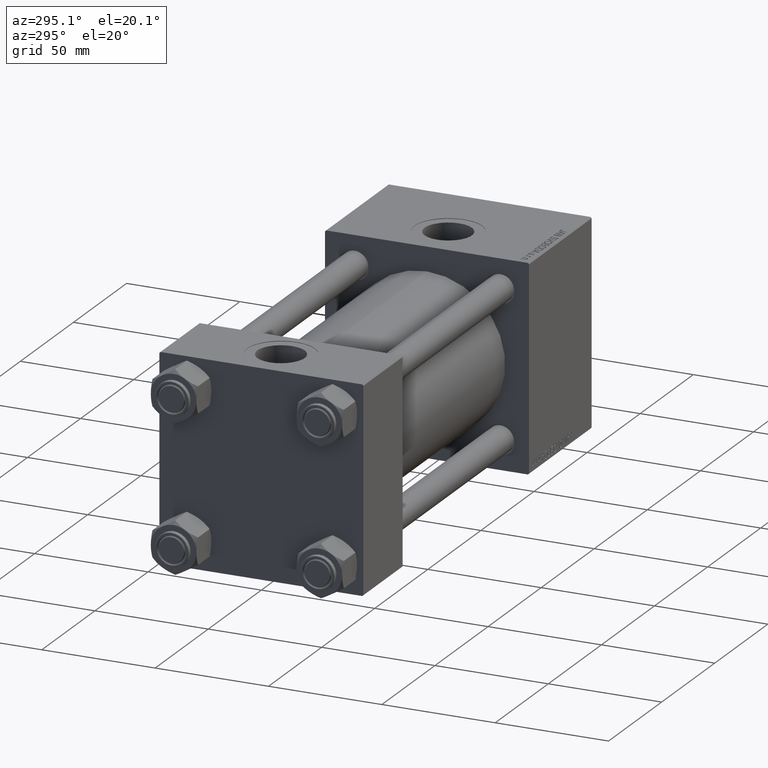
[diagram: clean part render]
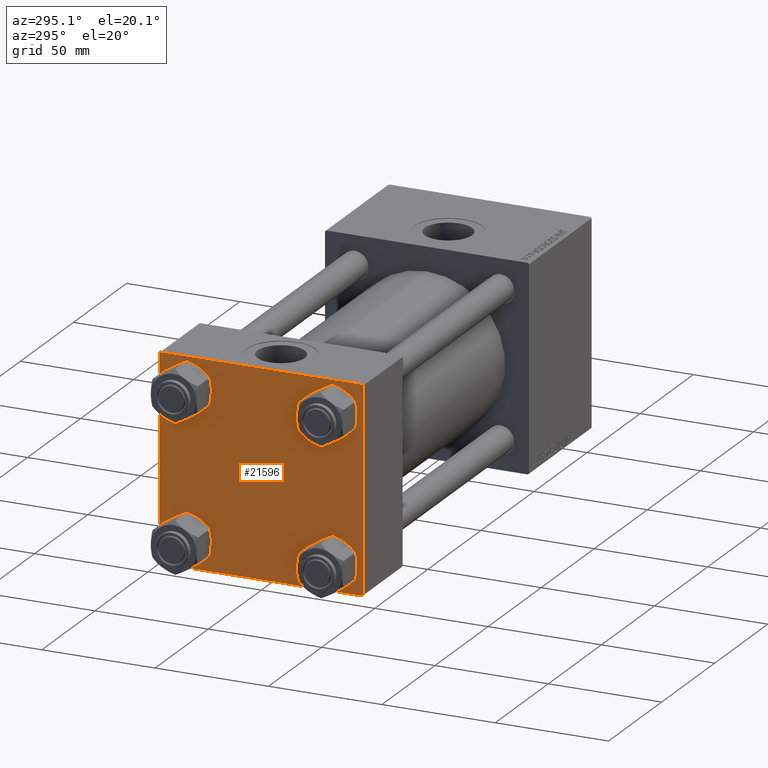
[diagram: same view with one face highlighted and labeled with its STEP entity id]
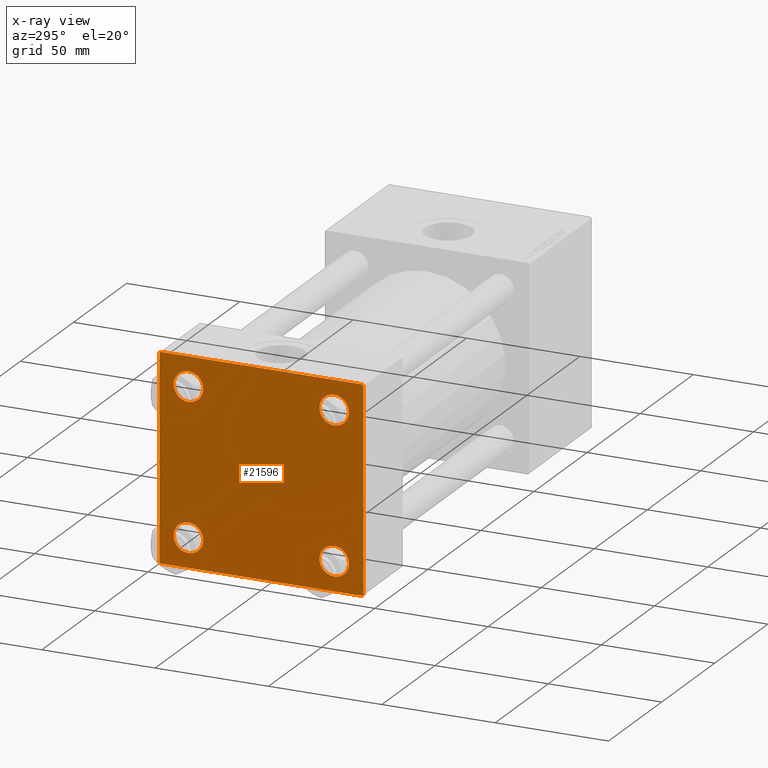
[diagram: x-ray of the same camera — body ghosted, the highlighted face saturated]
A machine part, auxiliary view. The second image highlights one B-rep face of the part: STEP entity #21596.
The next image is the same camera in x-ray: the body ghosted, the highlighted face saturated — about 0% of this face is hidden behind the body in this view.
In plain terms, the highlighted planar face has unit normal (-1, 0, 0).
Its self-contained STEP definition (entity closure, byte-faithful):
#1810 = VERTEX_POINT ( 'NONE', #11045 ) ;
#2087 = DIRECTION ( 'NONE',  ( 1.000000000000000000, -0.000000000000000000, 0.000000000000000000 ) ) ;
#2313 = EDGE_CURVE ( 'NONE', #42416, #33259, #43285, .T. ) ;
#2339 = DIRECTION ( 'NONE',  ( 0.000000000000000000, 0.000000000000000000, 1.000000000000000000 ) ) ;
#2848 = CARTESIAN_POINT ( 'NONE',  ( 0.000000000000000000, 44.99999999999998579, -44.49999999999995737 ) ) ;
#3669 = DIRECTION ( 'NONE',  ( 1.000000000000000000, -0.000000000000000000, 0.000000000000000000 ) ) ;
#3994 = FACE_BOUND ( 'NONE', #44770, .T. ) ;
#4789 = CARTESIAN_POINT ( 'NONE',  ( 0.000000000000000000, 44.49999999999998579, 45.00000000000001421 ) ) ;
#4838 = ORIENTED_EDGE ( 'NONE', *, *, #48490, .T. ) ;
#5170 = DIRECTION ( 'NONE',  ( -0.000000000000000000, 0.7071067811865425767, 0.7071067811865524577 ) ) ;
#5544 = VERTEX_POINT ( 'NONE', #14562 ) ;
#6396 = EDGE_CURVE ( 'NONE', #20323, #20242, #13060, .T. ) ;
#7271 = EDGE_CURVE ( 'NONE', #1810, #5544, #36889, .T. ) ;
#7579 = DIRECTION ( 'NONE',  ( 0.000000000000000000, 0.000000000000000000, 1.000000000000000000 ) ) ;
#8131 = DIRECTION ( 'NONE',  ( -0.000000000000000000, -0.7071067811865474617, -0.7071067811865474617 ) ) ;
#8207 = ORIENTED_EDGE ( 'NONE', *, *, #46678, .F. ) ;
#8283 = DIRECTION ( 'NONE',  ( 1.000000000000000000, -0.000000000000000000, 0.000000000000000000 ) ) ;
#8786 = DIRECTION ( 'NONE',  ( 0.000000000000000000, -0.7071067811865474617, 0.7071067811865474617 ) ) ;
#8926 = CARTESIAN_POINT ( 'NONE',  ( 0.000000000000000000, -32.14999999999997726, -25.65000000000003411 ) ) ;
#9242 = CARTESIAN_POINT ( 'NONE',  ( 0.000000000000000000, 32.14999999999999147, 32.15000000000000568 ) ) ;
#9806 = CARTESIAN_POINT ( 'NONE',  ( 0.000000000000000000, -45.00000000000000711, 45.00000000000000000 ) ) ;
#10195 = CARTESIAN_POINT ( 'NONE',  ( 0.000000000000000000, -45.00000000000000000, -44.49999999999995737 ) ) ;
#10413 = CARTESIAN_POINT ( 'NONE',  ( 0.000000000000000000, 32.14999999999999147, -32.15000000000000568 ) ) ;
#10668 = CARTESIAN_POINT ( 'NONE',  ( 0.000000000000000000, -32.14999999999997726, 32.15000000000001279 ) ) ;
#10815 = EDGE_LOOP ( 'NONE', ( #16913, #4838, #38768, #42452, #8207, #41513, #40424, #30926 ) ) ;
#10825 = DIRECTION ( 'NONE',  ( 1.000000000000000000, -0.000000000000000000, 0.000000000000000000 ) ) ;
#10912 = DIRECTION ( 'NONE',  ( 1.000000000000000000, -0.000000000000000000, 0.000000000000000000 ) ) ;
#11045 = CARTESIAN_POINT ( 'NONE',  ( 0.000000000000000000, 32.14999999999999147, 25.65000000000002700 ) ) ;
#11066 = EDGE_CURVE ( 'NONE', #31455, #15066, #20056, .T. ) ;
#11110 = CARTESIAN_POINT ( 'NONE',  ( 0.000000000000000000, 32.14999999999999147, -32.15000000000000568 ) ) ;
#11382 = FACE_BOUND ( 'NONE', #38841, .T. ) ;
#11398 = CARTESIAN_POINT ( 'NONE',  ( 0.000000000000000000, 44.74999999999999289, 44.74999999999999289 ) ) ;
#11445 = CARTESIAN_POINT ( 'NONE',  ( 0.000000000000000000, 44.99999999999998579, 45.00000000000001421 ) ) ;
#13060 = LINE ( 'NONE', #13806, #27151 ) ;
#13390 = CARTESIAN_POINT ( 'NONE',  ( 0.000000000000000000, -44.74999999999998579, -44.74999999999998579 ) ) ;
#13806 = CARTESIAN_POINT ( 'NONE',  ( -0.000000000000000000, -44.75000000000029843, 44.74999999999967315 ) ) ;
#14043 = ORIENTED_EDGE ( 'NONE', *, *, #35706, .T. ) ;
#14361 = ORIENTED_EDGE ( 'NONE', *, *, #26092, .T. ) ;
#14562 = CARTESIAN_POINT ( 'NONE',  ( 0.000000000000000000, 32.14999999999999147, 38.64999999999999147 ) ) ;
#14794 = DIRECTION ( 'NONE',  ( 0.000000000000000000, 0.000000000000000000, -1.000000000000000000 ) ) ;
#14814 = VECTOR ( 'NONE', #8131, 1000.000000000000114 ) ;
#15066 = VERTEX_POINT ( 'NONE', #10195 ) ;
#16451 = CARTESIAN_POINT ( 'NONE',  ( 0.000000000000000000, 44.99999999999998579, 45.00000000000001421 ) ) ;
#16913 = ORIENTED_EDGE ( 'NONE', *, *, #30811, .T. ) ;
#17174 = CIRCLE ( 'NONE', #23671, 6.500000000000019540 ) ;
#17544 = ORIENTED_EDGE ( 'NONE', *, *, #21727, .T. ) ;
#18025 = AXIS2_PLACEMENT_3D ( 'NONE', #42969, #34806, #46299 ) ;
#19078 = DIRECTION ( 'NONE',  ( 0.000000000000000000, 0.7071067811865474617, -0.7071067811865474617 ) ) ;
#19494 = CARTESIAN_POINT ( 'NONE',  ( 0.000000000000000000, 32.14999999999999147, -25.65000000000002700 ) ) ;
#19552 = FACE_BOUND ( 'NONE', #45702, .T. ) ;
#19564 = CIRCLE ( 'NONE', #48919, 6.499999999999977796 ) ;
#19683 = CIRCLE ( 'NONE', #30924, 6.500000000000019540 ) ;
#19985 = DIRECTION ( 'NONE',  ( 0.000000000000000000, 0.000000000000000000, 1.000000000000000000 ) ) ;
#20056 = LINE ( 'NONE', #13390, #30458 ) ;
#20242 = VERTEX_POINT ( 'NONE', #33621 ) ;
#20323 = VERTEX_POINT ( 'NONE', #22928 ) ;
#20562 = VERTEX_POINT ( 'NONE', #26449 ) ;
#20577 = VECTOR ( 'NONE', #19078, 1000.000000000000114 ) ;
#20924 = ORIENTED_EDGE ( 'NONE', *, *, #47404, .T. ) ;
#21596 = ADVANCED_FACE ( 'NONE', ( #3994, #19552, #31505, #11382, #39145 ), #35311, .T. ) ;
#21727 = EDGE_CURVE ( 'NONE', #43441, #50282, #47987, .T. ) ;
#22874 = DIRECTION ( 'NONE',  ( -0.000000000000000000, 0.000000000000000000, 1.000000000000000000 ) ) ;
#22928 = CARTESIAN_POINT ( 'NONE',  ( 0.000000000000000000, -45.00000000000000711, 44.49999999999997158 ) ) ;
#23230 = CARTESIAN_POINT ( 'NONE',  ( 0.000000000000000000, 44.49999999999998579, -44.99999999999998579 ) ) ;
#23400 = VERTEX_POINT ( 'NONE', #23230 ) ;
#23566 = ORIENTED_EDGE ( 'NONE', *, *, #25262, .T. ) ;
#23671 = AXIS2_PLACEMENT_3D ( 'NONE', #30191, #10825, #25618 ) ;
#23981 = EDGE_CURVE ( 'NONE', #34213, #20562, #17174, .T. ) ;
#25262 = EDGE_CURVE ( 'NONE', #33259, #42416, #19564, .T. ) ;
#25370 = LINE ( 'NONE', #9806, #31828 ) ;
#25569 = EDGE_LOOP ( 'NONE', ( #34942, #23566 ) ) ;
#25618 = DIRECTION ( 'NONE',  ( 0.000000000000000000, 0.000000000000000000, 1.000000000000000000 ) ) ;
#26036 = AXIS2_PLACEMENT_3D ( 'NONE', #42874, #3669, #19985 ) ;
#26092 = EDGE_CURVE ( 'NONE', #20562, #34213, #19683, .T. ) ;
#26169 = CIRCLE ( 'NONE', #18025, 6.499999999999977796 ) ;
#26225 = DIRECTION ( 'NONE',  ( 1.000000000000000000, -0.000000000000000000, 0.000000000000000000 ) ) ;
#26449 = CARTESIAN_POINT ( 'NONE',  ( 0.000000000000000000, -32.14999999999997726, 25.64999999999999147 ) ) ;
#26666 = DIRECTION ( 'NONE',  ( 0.000000000000000000, 0.000000000000000000, 1.000000000000000000 ) ) ;
#27151 = VECTOR ( 'NONE', #5170, 1000.000000000000114 ) ;
#27201 = CARTESIAN_POINT ( 'NONE',  ( 0.000000000000000000, 0.000000000000000000, 0.000000000000000000 ) ) ;
#27579 = VERTEX_POINT ( 'NONE', #2848 ) ;
#27835 = AXIS2_PLACEMENT_3D ( 'NONE', #11110, #30964, #26666 ) ;
#28526 = LINE ( 'NONE', #46873, #14814 ) ;
#28659 = VECTOR ( 'NONE', #14794, 1000.000000000000000 ) ;
#28790 = AXIS2_PLACEMENT_3D ( 'NONE', #9242, #2087, #2339 ) ;
#29173 = DIRECTION ( 'NONE',  ( 0.000000000000000000, 0.000000000000000000, 1.000000000000000000 ) ) ;
#29350 = VECTOR ( 'NONE', #41262, 1000.000000000000000 ) ;
#30136 = VERTEX_POINT ( 'NONE', #36493 ) ;
#30191 = CARTESIAN_POINT ( 'NONE',  ( 0.000000000000000000, -32.14999999999997726, 32.15000000000001279 ) ) ;
#30458 = VECTOR ( 'NONE', #8786, 1000.000000000000114 ) ;
#30578 = LINE ( 'NONE', #11445, #28659 ) ;
#30811 = EDGE_CURVE ( 'NONE', #30136, #27579, #30578, .T. ) ;
#30924 = AXIS2_PLACEMENT_3D ( 'NONE', #10668, #26225, #42227 ) ;
#30926 = ORIENTED_EDGE ( 'NONE', *, *, #49945, .T. ) ;
#30964 = DIRECTION ( 'NONE',  ( 1.000000000000000000, -0.000000000000000000, 0.000000000000000000 ) ) ;
#31455 = VERTEX_POINT ( 'NONE', #42588 ) ;
#31505 = FACE_BOUND ( 'NONE', #25569, .T. ) ;
#31828 = VECTOR ( 'NONE', #45483, 1000.000000000000000 ) ;
#32361 = ORIENTED_EDGE ( 'NONE', *, *, #7271, .T. ) ;
#33259 = VERTEX_POINT ( 'NONE', #49333 ) ;
#33621 = CARTESIAN_POINT ( 'NONE',  ( 0.000000000000000000, -44.49999999999995737, 45.00000000000000000 ) ) ;
#34213 = VERTEX_POINT ( 'NONE', #44693 ) ;
#34330 = LINE ( 'NONE', #11398, #20577 ) ;
#34507 = CIRCLE ( 'NONE', #41836, 6.499999999999977796 ) ;
#34806 = DIRECTION ( 'NONE',  ( 1.000000000000000000, -0.000000000000000000, 0.000000000000000000 ) ) ;
#34942 = ORIENTED_EDGE ( 'NONE', *, *, #2313, .T. ) ;
#35048 = DIRECTION ( 'NONE',  ( -1.000000000000000000, 0.000000000000000000, -0.000000000000000000 ) ) ;
#35311 = PLANE ( 'NONE',  #47150 ) ;
#35523 = VERTEX_POINT ( 'NONE', #4789 ) ;
#35706 = EDGE_CURVE ( 'NONE', #5544, #1810, #34507, .T. ) ;
#35759 = DIRECTION ( 'NONE',  ( 0.000000000000000000, -1.000000000000000000, -1.541976423090495387E-16 ) ) ;
#36493 = CARTESIAN_POINT ( 'NONE',  ( 0.000000000000000000, 44.99999999999998579, 44.50000000000001421 ) ) ;
#36889 = CIRCLE ( 'NONE', #28790, 6.499999999999977796 ) ;
#38335 = CARTESIAN_POINT ( 'NONE',  ( 0.000000000000000000, -32.14999999999997726, -38.64999999999999147 ) ) ;
#38592 = EDGE_CURVE ( 'NONE', #35523, #20242, #39864, .T. ) ;
#38768 = ORIENTED_EDGE ( 'NONE', *, *, #46198, .T. ) ;
#38841 = EDGE_LOOP ( 'NONE', ( #14043, #32361 ) ) ;
#39145 = FACE_OUTER_BOUND ( 'NONE', #10815, .T. ) ;
#39864 = LINE ( 'NONE', #16451, #44345 ) ;
#40107 = ORIENTED_EDGE ( 'NONE', *, *, #23981, .T. ) ;
#40424 = ORIENTED_EDGE ( 'NONE', *, *, #38592, .F. ) ;
#41262 = DIRECTION ( 'NONE',  ( 0.000000000000000000, -1.000000000000000000, -1.541976423090495633E-16 ) ) ;
#41513 = ORIENTED_EDGE ( 'NONE', *, *, #6396, .T. ) ;
#41836 = AXIS2_PLACEMENT_3D ( 'NONE', #43191, #8283, #29173 ) ;
#42227 = DIRECTION ( 'NONE',  ( 0.000000000000000000, 0.000000000000000000, 1.000000000000000000 ) ) ;
#42416 = VERTEX_POINT ( 'NONE', #19494 ) ;
#42452 = ORIENTED_EDGE ( 'NONE', *, *, #11066, .T. ) ;
#42588 = CARTESIAN_POINT ( 'NONE',  ( 0.000000000000000000, -44.49999999999995737, -45.00000000000000000 ) ) ;
#42874 = CARTESIAN_POINT ( 'NONE',  ( 0.000000000000000000, -32.14999999999997726, -32.15000000000001279 ) ) ;
#42969 = CARTESIAN_POINT ( 'NONE',  ( 0.000000000000000000, -32.14999999999997726, -32.15000000000001279 ) ) ;
#43191 = CARTESIAN_POINT ( 'NONE',  ( 0.000000000000000000, 32.14999999999999147, 32.15000000000000568 ) ) ;
#43285 = CIRCLE ( 'NONE', #27835, 6.499999999999977796 ) ;
#43441 = VERTEX_POINT ( 'NONE', #8926 ) ;
#44345 = VECTOR ( 'NONE', #35759, 1000.000000000000000 ) ;
#44693 = CARTESIAN_POINT ( 'NONE',  ( 0.000000000000000000, -32.14999999999997726, 38.65000000000003411 ) ) ;
#44770 = EDGE_LOOP ( 'NONE', ( #40107, #14361 ) ) ;
#45096 = CARTESIAN_POINT ( 'NONE',  ( 0.000000000000000000, 44.99999999999998579, -44.99999999999998579 ) ) ;
#45483 = DIRECTION ( 'NONE',  ( 0.000000000000000000, 7.709882115452476934E-17, -1.000000000000000000 ) ) ;
#45702 = EDGE_LOOP ( 'NONE', ( #17544, #20924 ) ) ;
#46198 = EDGE_CURVE ( 'NONE', #23400, #31455, #49167, .T. ) ;
#46299 = DIRECTION ( 'NONE',  ( 0.000000000000000000, 0.000000000000000000, 1.000000000000000000 ) ) ;
#46678 = EDGE_CURVE ( 'NONE', #20323, #15066, #25370, .T. ) ;
#46873 = CARTESIAN_POINT ( 'NONE',  ( 0.000000000000000000, 44.74999999999998579, -44.74999999999998579 ) ) ;
#47150 = AXIS2_PLACEMENT_3D ( 'NONE', #27201, #35048, #22874 ) ;
#47404 = EDGE_CURVE ( 'NONE', #50282, #43441, #26169, .T. ) ;
#47987 = CIRCLE ( 'NONE', #26036, 6.499999999999977796 ) ;
#48490 = EDGE_CURVE ( 'NONE', #27579, #23400, #28526, .T. ) ;
#48919 = AXIS2_PLACEMENT_3D ( 'NONE', #10413, #10912, #7579 ) ;
#49167 = LINE ( 'NONE', #45096, #29350 ) ;
#49333 = CARTESIAN_POINT ( 'NONE',  ( 0.000000000000000000, 32.14999999999999147, -38.64999999999998437 ) ) ;
#49945 = EDGE_CURVE ( 'NONE', #35523, #30136, #34330, .T. ) ;
#50282 = VERTEX_POINT ( 'NONE', #38335 ) ;